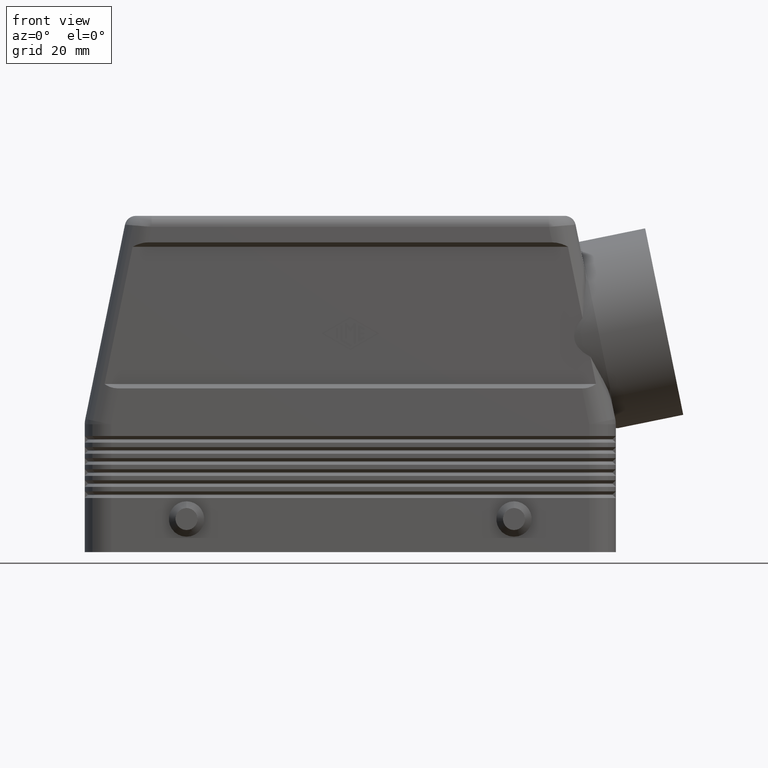
[diagram: clean part render]
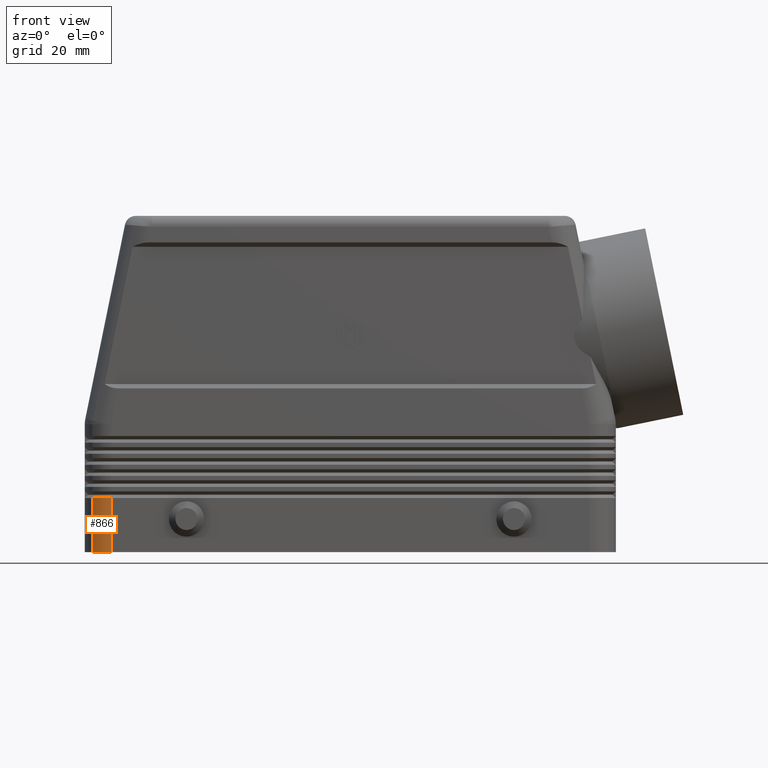
[diagram: same view with one face highlighted and labeled with its STEP entity id]
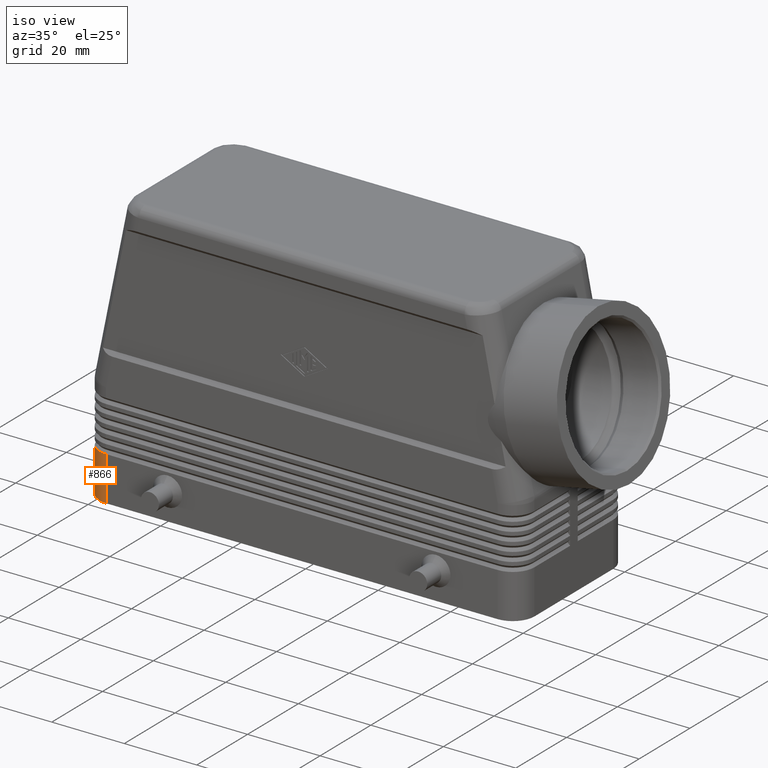
[diagram: same view with one face highlighted and labeled with its STEP entity id]
A machine part, front view. The second image highlights one B-rep face of the part: STEP entity #866.
A second angle (iso view) of the same face is appended — the face is thin or edge-on in the first view.
In plain terms, the highlighted cylindrical surface (edge-blend (fillet) strip) has radius 6 mm, axis along (0, 0, 1).
Its self-contained STEP definition (entity closure, byte-faithful):
#825=CARTESIAN_POINT('',(-54.0,-15.499999999999998,32.824918554434689));
#826=DIRECTION('',(0.0,0.0,1.0));
#827=DIRECTION('',(-0.707106781186547,-0.707106781186548,0.0));
#828=AXIS2_PLACEMENT_3D('',#825,#826,#827);
#829=CYLINDRICAL_SURFACE('',#828,6.0);
#830=CARTESIAN_POINT('',(-58.242640687119284,-19.742640687119284,0.0));
#831=VERTEX_POINT('',#830);
#832=CARTESIAN_POINT('',(-58.242640687119284,-19.742640687119287,12.250000000000004));
#833=VERTEX_POINT('',#832);
#834=CARTESIAN_POINT('',(-58.242640687119284,-19.742640687119284,0.0));
#835=DIRECTION('',(0.0,0.0,1.0));
#836=VECTOR('',#835,12.250000000000004);
#837=LINE('',#834,#836);
#838=EDGE_CURVE('',#831,#833,#837,.T.);
#839=ORIENTED_EDGE('',*,*,#838,.F.);
#840=CARTESIAN_POINT('',(-54.0,-21.500000000000000,0.0));
#841=VERTEX_POINT('',#840);
#842=CARTESIAN_POINT('',(-54.0,-15.499999999999998,0.0));
#843=DIRECTION('',(0.0,0.0,1.0));
#844=DIRECTION('',(-0.707106781186547,-0.707106781186548,0.0));
#845=AXIS2_PLACEMENT_3D('',#842,#843,#844);
#846=CIRCLE('',#845,6.0);
#847=EDGE_CURVE('',#831,#841,#846,.T.);
#848=ORIENTED_EDGE('',*,*,#847,.T.);
#849=CARTESIAN_POINT('',(-54.0,-21.500000000000000,12.250000000000005));
#850=VERTEX_POINT('',#849);
#851=CARTESIAN_POINT('',(-54.0,-21.500000000000000,0.0));
#852=DIRECTION('',(0.0,0.0,1.0));
#853=VECTOR('',#852,12.250000000000005);
#854=LINE('',#851,#853);
#855=EDGE_CURVE('',#841,#850,#854,.T.);
#856=ORIENTED_EDGE('',*,*,#855,.T.);
#857=CARTESIAN_POINT('',(-54.0,-15.499999999999998,12.250000000000005));
#858=DIRECTION('',(0.0,0.0,1.0));
#859=DIRECTION('',(-0.707106781186547,-0.707106781186548,0.0));
#860=AXIS2_PLACEMENT_3D('',#857,#858,#859);
#861=CIRCLE('',#860,6.000000000000001);
#862=EDGE_CURVE('',#833,#850,#861,.T.);
#863=ORIENTED_EDGE('',*,*,#862,.F.);
#864=EDGE_LOOP('',(#839,#848,#856,#863));
#865=FACE_OUTER_BOUND('',#864,.T.);
#866=ADVANCED_FACE('',(#865),#829,.T.);